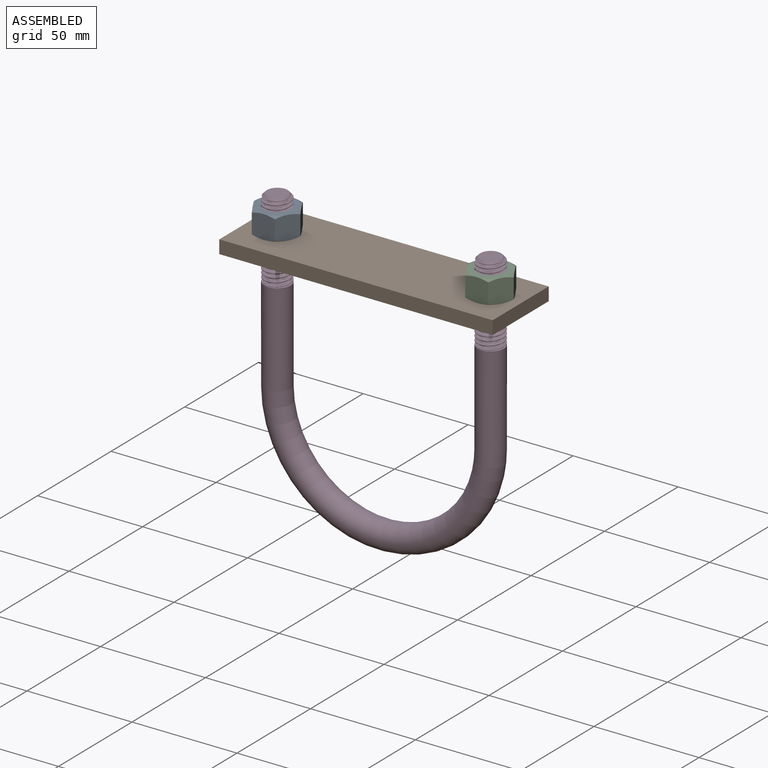
[diagram: assembled view]
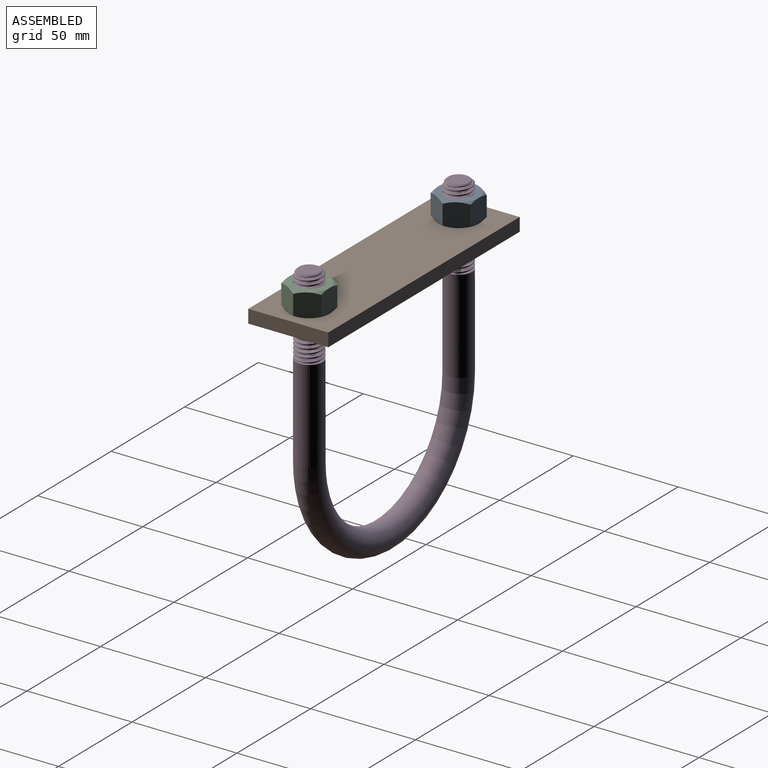
[diagram: assembled view, second angle]
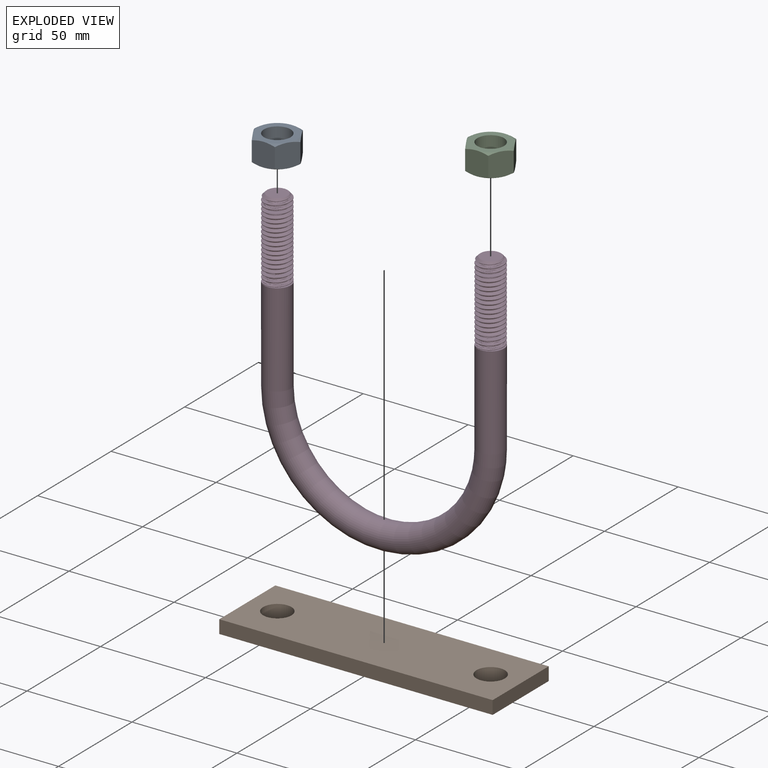
[diagram: exploded view]
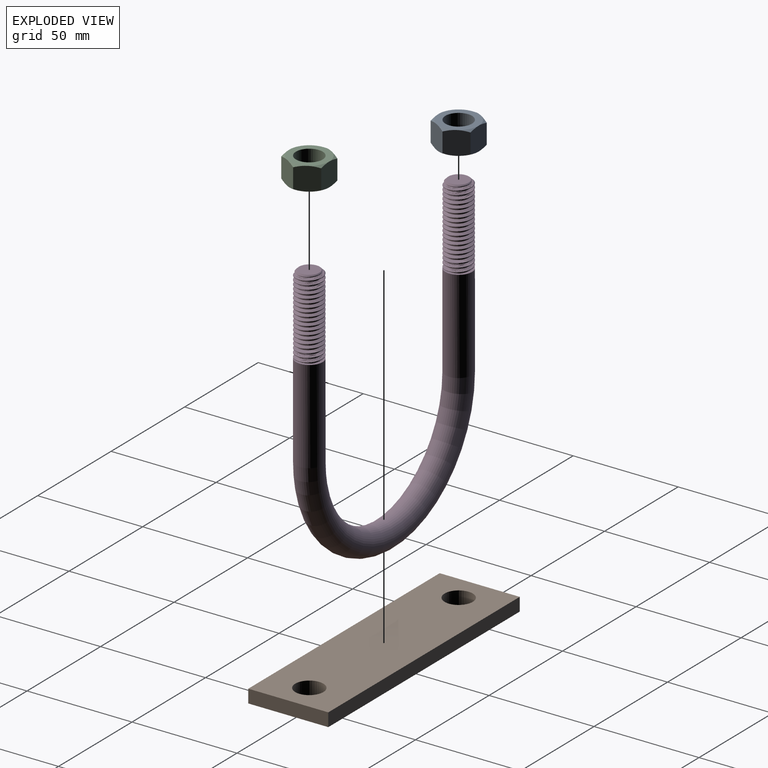
[diagram: exploded view, second angle]
ASSEMBLY  parts=4 mates=3
PART A: 21 faces, bbox 22x22x11.1 mm
  f0: cylinder r=6.35mm len=12.7mm, axis (0,0,-1), area 443.4mm2, adj f7,f8
  f1: plane 11.11x11mm, normal (0,-1,0), area 115.8mm2, adj f2,f6,f9,f14,f15,f20
  f2: plane 11.11x9.53mm, normal (0.87,-0.5,0), area 115.8mm2, adj f1,f3,f13,f14,f19,f20
  f3: plane 11.11x9.53mm, normal (0.87,0.5,0), area 115.8mm2, adj f2,f4,f12,f13,f18,f19
  f4: plane 11.11x11mm, normal (0,1,0), area 115.8mm2, adj f3,f5,f11,f12,f17,f18
  f5: plane 11.11x9.53mm, normal (-0.87,0.5,0), area 115.8mm2, adj f4,f6,f10,f11,f16,f17
  f6: plane 11.11x9.53mm, normal (-0.87,-0.5,0), area 115.8mm2, adj f1,f5,f9,f10,f15,f16
  f7: plane 19.05x19.05mm, normal (0,0,-1), area 158.3mm2, adj f0,f15,f16,f17,f18,f19,f20
  f8: plane 19.05x19.05mm, normal (0,0,1), area 158.3mm2, adj f0,f9,f10,f11,f12,f13,f14
  f9: cone r=9.53mm half-angle=60deg, axis (0,0,-1), area 5.6mm2, adj f1,f6,f8
  f10: cone r=9.53mm half-angle=60deg, axis (0,0,-1), area 5.6mm2, adj f5,f6,f8
  f11: cone r=9.53mm half-angle=60deg, axis (0,0,-1), area 5.6mm2, adj f4,f5,f8
  f12: cone r=9.53mm half-angle=60deg, axis (0,0,-1), area 5.6mm2, adj f3,f4,f8
  f13: cone r=9.53mm half-angle=60deg, axis (0,0,-1), area 5.6mm2, adj f2,f3,f8
  f14: cone r=9.53mm half-angle=60deg, axis (0,0,-1), area 5.6mm2, adj f1,f2,f8
  f15: cone r=9.53mm half-angle=60deg, axis (0,0,1), area 5.6mm2, adj f1,f6,f7
  f16: cone r=9.53mm half-angle=60deg, axis (0,0,1), area 5.6mm2, adj f5,f6,f7
  f17: cone r=9.53mm half-angle=60deg, axis (0,0,1), area 5.6mm2, adj f4,f5,f7
  f18: cone r=9.53mm half-angle=60deg, axis (0,0,1), area 5.6mm2, adj f3,f4,f7
  f19: cone r=9.53mm half-angle=60deg, axis (0,0,1), area 5.6mm2, adj f2,f3,f7
  f20: cone r=9.53mm half-angle=60deg, axis (0,0,1), area 5.6mm2, adj f1,f2,f7
PART B: 8 faces, bbox 130.2x38.1x6.4 mm
  f0: plane 130.18x6.35mm, normal (0,1,0), area 826.6mm2, adj f1,f5,f6,f7
  f1: plane 38.1x6.35mm, normal (-1,0,0), area 241.9mm2, adj f0,f2,f6,f7
  f2: plane 130.18x6.35mm, normal (0,-1,0), area 826.6mm2, adj f1,f5,f6,f7
  f3: cylinder r=6.73mm len=13.46mm, axis (0,0,-1), area 268.6mm2, adj f6,f7
  f4: cylinder r=6.73mm len=13.46mm, axis (0,0,-1), area 268.6mm2, adj f6,f7
  f5: plane 38.1x6.35mm, normal (1,0,0), area 241.9mm2, adj f0,f2,f6,f7
  f6: plane 130.18x38.1mm, normal (0,0,1), area 4675mm2, adj f0,f1,f2,f3,f4,f5
  f7: plane 130.18x38.1mm, normal (0,0,-1), area 4675mm2, adj f0,f1,f2,f3,f4,f5
PART C: 21 faces, bbox 22x22x11.1 mm
  f0: cylinder r=6.35mm len=12.7mm, axis (0,0,-1), area 443.4mm2, adj f7,f8
  f1: plane 11.11x11mm, normal (0,-1,0), area 115.8mm2, adj f2,f6,f9,f14,f15,f20
  f2: plane 11.11x9.53mm, normal (0.87,-0.5,0), area 115.8mm2, adj f1,f3,f13,f14,f19,f20
  f3: plane 11.11x9.53mm, normal (0.87,0.5,0), area 115.8mm2, adj f2,f4,f12,f13,f18,f19
  f4: plane 11.11x11mm, normal (0,1,0), area 115.8mm2, adj f3,f5,f11,f12,f17,f18
  f5: plane 11.11x9.53mm, normal (-0.87,0.5,0), area 115.8mm2, adj f4,f6,f10,f11,f16,f17
  f6: plane 11.11x9.53mm, normal (-0.87,-0.5,0), area 115.8mm2, adj f1,f5,f9,f10,f15,f16
  f7: plane 19.05x19.05mm, normal (0,0,-1), area 158.3mm2, adj f0,f15,f16,f17,f18,f19,f20
  f8: plane 19.05x19.05mm, normal (0,0,1), area 158.3mm2, adj f0,f9,f10,f11,f12,f13,f14
  f9: cone r=9.53mm half-angle=60deg, axis (0,0,-1), area 5.6mm2, adj f1,f6,f8
  f10: cone r=9.53mm half-angle=60deg, axis (0,0,-1), area 5.6mm2, adj f5,f6,f8
  f11: cone r=9.53mm half-angle=60deg, axis (0,0,-1), area 5.6mm2, adj f4,f5,f8
  f12: cone r=9.53mm half-angle=60deg, axis (0,0,-1), area 5.6mm2, adj f3,f4,f8
  f13: cone r=9.53mm half-angle=60deg, axis (0,0,-1), area 5.6mm2, adj f2,f3,f8
  f14: cone r=9.53mm half-angle=60deg, axis (0,0,-1), area 5.6mm2, adj f1,f2,f8
  f15: cone r=9.53mm half-angle=60deg, axis (0,0,1), area 5.6mm2, adj f1,f6,f7
  f16: cone r=9.53mm half-angle=60deg, axis (0,0,1), area 5.6mm2, adj f5,f6,f7
  f17: cone r=9.53mm half-angle=60deg, axis (0,0,1), area 5.6mm2, adj f4,f5,f7
  f18: cone r=9.53mm half-angle=60deg, axis (0,0,1), area 5.6mm2, adj f3,f4,f7
  f19: cone r=9.53mm half-angle=60deg, axis (0,0,1), area 5.6mm2, adj f2,f3,f7
  f20: cone r=9.53mm half-angle=60deg, axis (0,0,1), area 5.6mm2, adj f1,f2,f7
PART D: 53 faces, bbox 124.5x13.5x146.9 mm
  f0: torus R=50.8mm, axis (0,-1,0), area 6367.5mm2, adj f21,f42
  f1: cone r=4.88mm half-angle=45deg, axis (0,0,-1), area 40mm2, adj f2,f49,f50,f51,f52
  f2: cylinder r=6.35mm len=12.7mm, axis (0,0,1), area 5.5mm2, adj f1,f3,f50,f51
  f3: cylinder r=6.35mm len=12.7mm, axis (0,0,1), area 9.7mm2, adj f2,f4,f50,f51
  f4: cylinder r=6.35mm len=12.7mm, axis (0,0,1), area 9.7mm2, adj f3,f5,f50,f51
  f5: cylinder r=6.35mm len=12.7mm, axis (0,0,1), area 9.7mm2, adj f4,f6,f50,f51
  f6: cylinder r=6.35mm len=12.7mm, axis (0,0,1), area 9.7mm2, adj f5,f7,f50,f51
  f7: cylinder r=6.35mm len=12.7mm, axis (0,0,1), area 9.7mm2, adj f6,f8,f50,f51
  f8: cylinder r=6.35mm len=12.7mm, axis (0,0,1), area 9.7mm2, adj f7,f9,f50,f51
  f9: cylinder r=6.35mm len=12.7mm, axis (0,0,1), area 9.7mm2, adj f8,f10,f50,f51
  f10: cylinder r=6.35mm len=12.7mm, axis (0,0,1), area 9.7mm2, adj f9,f11,f50,f51
  f11: cylinder r=6.35mm len=12.7mm, axis (0,0,1), area 9.7mm2, adj f10,f12,f50,f51
  f12: cylinder r=6.35mm len=12.7mm, axis (0,0,1), area 9.7mm2, adj f11,f13,f50,f51
  f13: cylinder r=6.35mm len=12.7mm, axis (0,0,1), area 9.7mm2, adj f12,f14,f50,f51
  f14: cylinder r=6.35mm len=12.7mm, axis (0,0,1), area 9.7mm2, adj f13,f15,f50,f51
  f15: cylinder r=6.35mm len=12.7mm, axis (0,0,1), area 9.7mm2, adj f14,f16,f50,f51
  f16: cylinder r=6.35mm len=12.7mm, axis (0,0,1), area 9.7mm2, adj f15,f17,f50,f51
  f17: cylinder r=6.35mm len=12.7mm, axis (0,0,1), area 9.7mm2, adj f16,f18,f50,f51
  f18: cylinder r=6.35mm len=12.7mm, axis (0,0,1), area 9.7mm2, adj f17,f19,f50,f51
  f19: cylinder r=6.35mm len=12.7mm, axis (0,0,1), area 9.7mm2, adj f18,f20,f50,f51
  f20: cylinder r=6.35mm len=12.7mm, axis (0,0,1), area 9.7mm2, adj f19,f21,f50,f51
  f21: cylinder r=6.35mm len=44.94mm, axis (0,0,1), area 1775.3mm2, adj f0,f20,f48,f50,f51
  f22: cone r=4.88mm half-angle=45deg, axis (0,0,-1), area 40mm2, adj f23,f43,f44,f45,f46
  f23: cylinder r=6.35mm len=12.7mm, axis (0,0,1), area 5.5mm2, adj f22,f24,f44,f45
  f24: cylinder r=6.35mm len=12.7mm, axis (0,0,1), area 9.7mm2, adj f23,f25,f44,f45
  f25: cylinder r=6.35mm len=12.7mm, axis (0,0,1), area 9.7mm2, adj f24,f26,f44,f45
  f26: cylinder r=6.35mm len=12.7mm, axis (0,0,1), area 9.7mm2, adj f25,f27,f44,f45
  f27: cylinder r=6.35mm len=12.7mm, axis (0,0,1), area 9.7mm2, adj f26,f28,f44,f45
  f28: cylinder r=6.35mm len=12.7mm, axis (0,0,1), area 9.7mm2, adj f27,f29,f44,f45
  f29: cylinder r=6.35mm len=12.7mm, axis (0,0,1), area 9.7mm2, adj f28,f30,f44,f45
  f30: cylinder r=6.35mm len=12.7mm, axis (0,0,1), area 9.7mm2, adj f29,f31,f44,f45
  f31: cylinder r=6.35mm len=12.7mm, axis (0,0,1), area 9.7mm2, adj f30,f32,f44,f45
  f32: cylinder r=6.35mm len=12.7mm, axis (0,0,1), area 9.7mm2, adj f31,f33,f44,f45
  f33: cylinder r=6.35mm len=12.7mm, axis (0,0,1), area 9.7mm2, adj f32,f34,f44,f45
  f34: cylinder r=6.35mm len=12.7mm, axis (0,0,1), area 9.7mm2, adj f33,f35,f44,f45
  f35: cylinder r=6.35mm len=12.7mm, axis (0,0,1), area 9.7mm2, adj f34,f36,f44,f45
  f36: cylinder r=6.35mm len=12.7mm, axis (0,0,1), area 9.7mm2, adj f35,f37,f44,f45
  f37: cylinder r=6.35mm len=12.7mm, axis (0,0,1), area 9.7mm2, adj f36,f38,f44,f45
  f38: cylinder r=6.35mm len=12.7mm, axis (0,0,1), area 9.7mm2, adj f37,f39,f44,f45
  f39: cylinder r=6.35mm len=12.7mm, axis (0,0,1), area 9.7mm2, adj f38,f40,f44,f45
  f40: cylinder r=6.35mm len=12.7mm, axis (0,0,1), area 9.7mm2, adj f39,f41,f44,f45
  f41: cylinder r=6.35mm len=12.7mm, axis (0,0,1), area 9.7mm2, adj f40,f42,f44,f45
  f42: cylinder r=6.35mm len=44.94mm, axis (0,0,1), area 1775.3mm2, adj f0,f41,f44,f45,f47
  f43: plane 9.77x9.77mm, normal (0,0,1), area 75mm2, adj f22
  f44: bspline ~40.54x12.7mm, area 989.5mm2, adj f22,f23,f24,f25,f26,f27,f28,f29
  f45: bspline ~38.64x12.7mm, area 1004.2mm2, adj f22,f23,f24,f25,f26,f27,f28,f29
  f46: cylinder r=5.08mm len=37.9mm, axis (0,0,-1), area 118.1mm2, adj f22,f44,f45,f47
  f47: plane 13.45x13.45mm, normal (0,0,1), area 23.4mm2, adj f42,f44,f45,f46
  f48: plane 13.45x13.45mm, normal (0,0,1), area 23.4mm2, adj f21,f50,f51,f52
  f49: plane 9.77x9.77mm, normal (0,0,1), area 75mm2, adj f1
  f50: bspline ~40.54x12.7mm, area 989.5mm2, adj f1,f2,f3,f4,f5,f6,f7,f8
  f51: bspline ~38.64x12.7mm, area 1004.2mm2, adj f1,f2,f3,f4,f5,f6,f7,f8
  f52: cylinder r=5.08mm len=37.9mm, axis (0,0,-1), area 118.1mm2, adj f1,f48,f50,f51
PLACE A at identity
PLACE B t=(0,0,-24.61)mm
PLACE C at identity
PLACE D t=(0,0,-1.75)mm
MATE fastened D.f1 <-> B.f4  axis (0,0,1) through (50.8,0,80.8)mm
MATE fastened C.f0 <-> B.f4  axis (0,0,-1) through (50.8,0,64.29)mm
MATE fastened B.f3 <-> A.f0  axis (0,0,1) through (-50.8,0,64.29)mm
